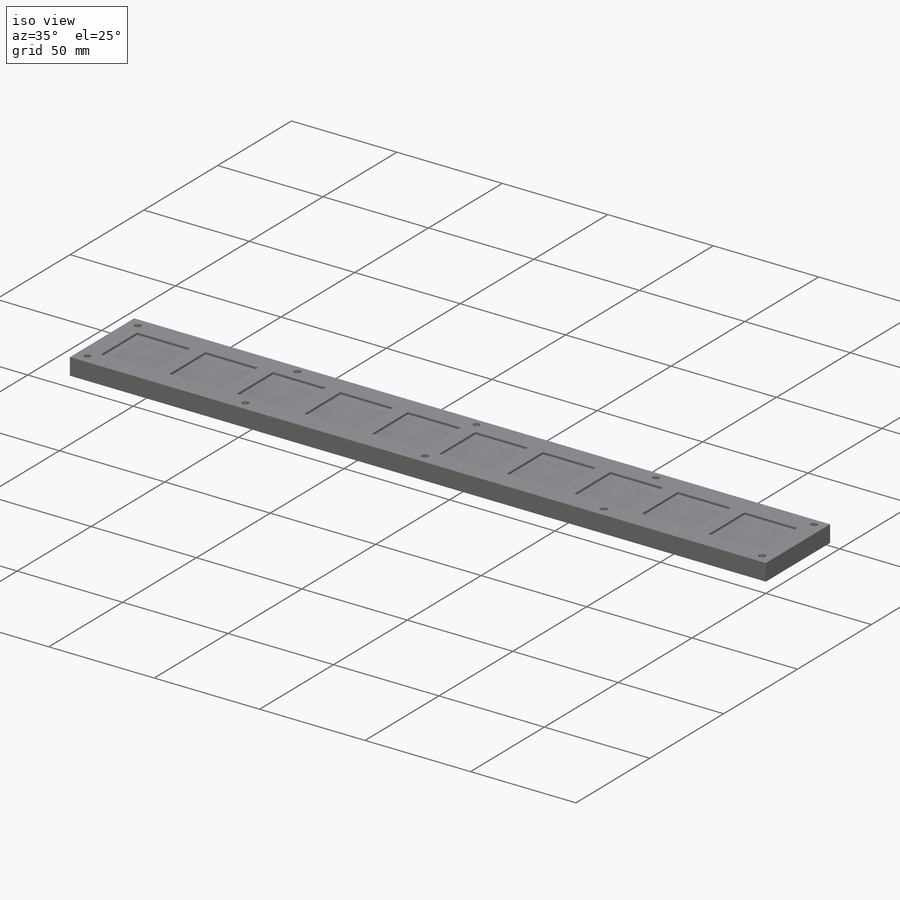
[diagram: iso view]
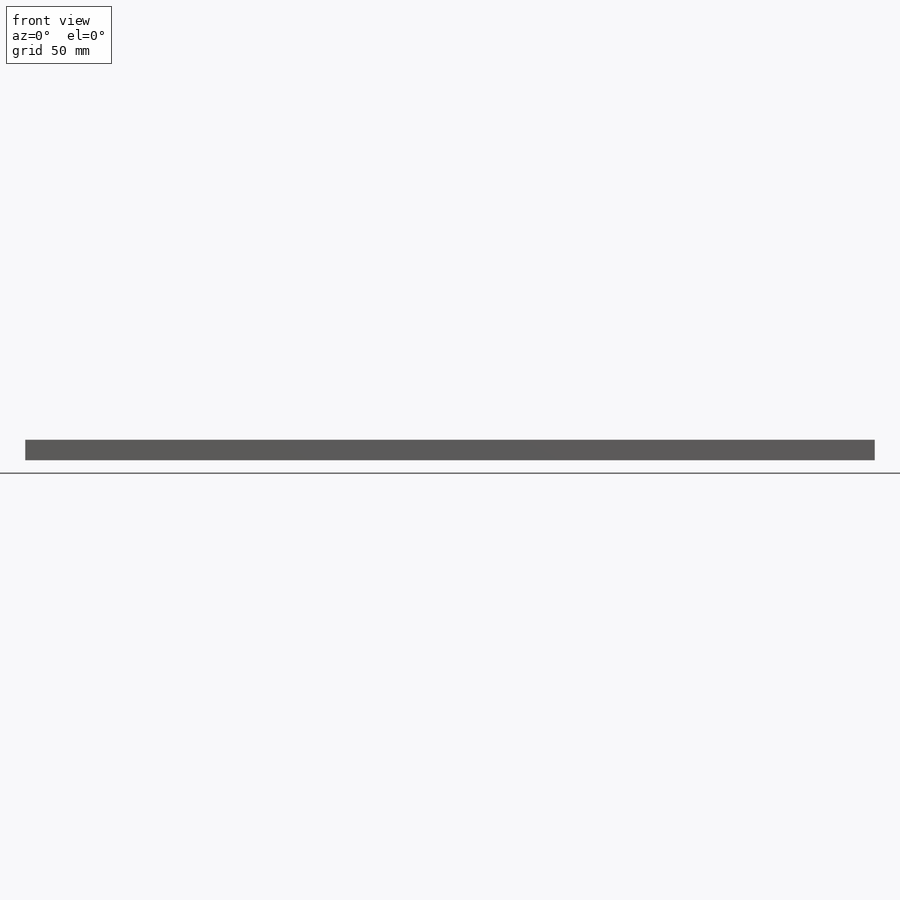
[diagram: front view]
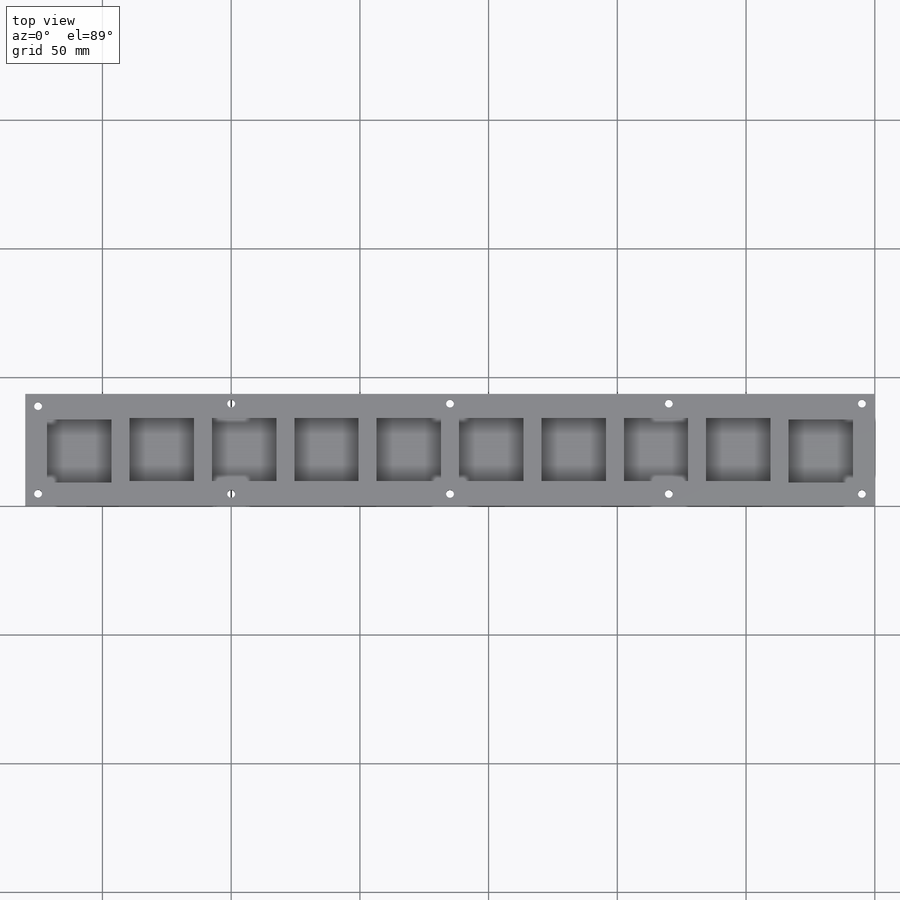
[diagram: top view]
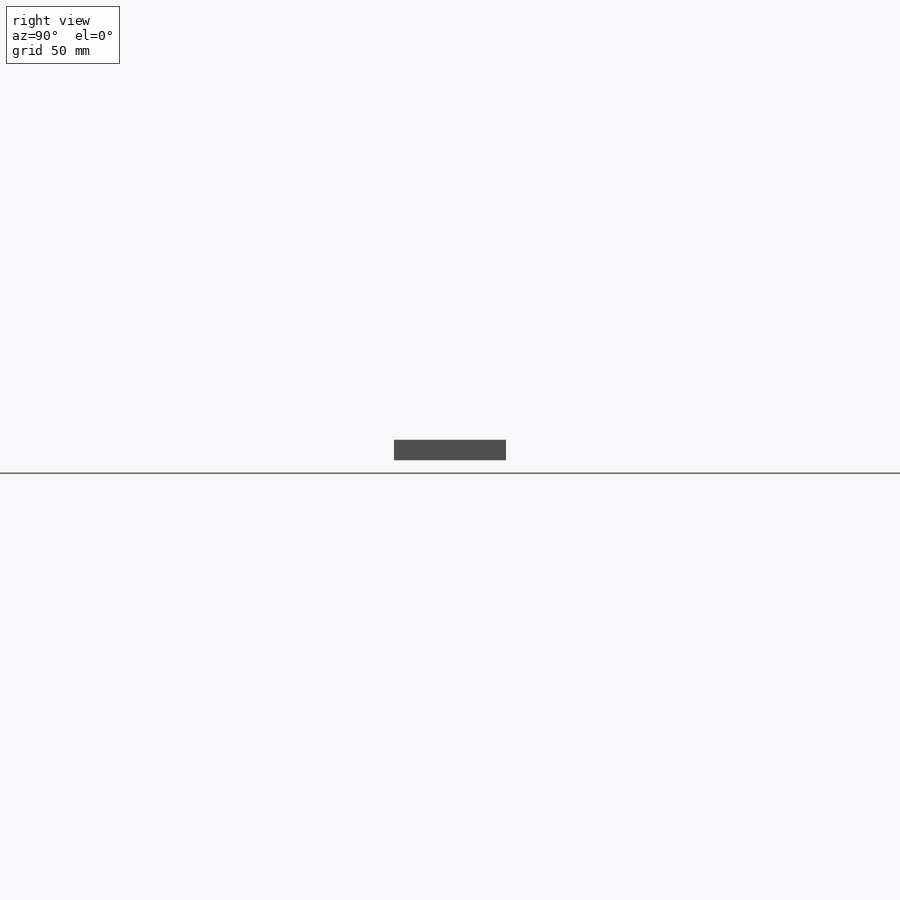
[diagram: right view]
SOLIDWORKS PART (.sldprt)
format: sldprt  version: not decoded by parser v0  size: 342,016 bytes
history: native  units: mm
features: thread x10, sketch x4, material x1, extrude x1, cut_extrude x1, hole x1 (+11 scaffold rows collapsed)
feature tree (29):
  scaffold x11  (default folders/planes/origin — collapsed)
  material  "Material <not specified>"
  sketch  "Sketch1"  dims[D1=330.0mm D2=43.5mm]
  extrude  "Boss-Extrude1"  Depth=8mm
  sketch  "Sketch6"  dims[D1=3.5mm D2=~25.004721mm D3=24.5mm D8=7.0mm D9=7.0mm D10=7.0mm D11=7.0mm D12=9.5mm D13=9.5mm D4=2.0 D5=2.0 D6=2.0 D7=2.0]
  cut_extrude  "Cut-Extrude1"  Depth=1mm
  hole  "Tapped Hole for #4-40 Helicoil2"  [1 undecoded]
  sketch  "Sketch14"  dims[c1.D1=4.75mm c1.D2=4.75mm c1.D3=80.0mm c1.D4=165.0mm c1.D5=250.0mm c1.D6=5.0mm c1.D7=5.0mm c1.D8=80.0mm c1.D9=165.0mm c1.D10=250.0mm c1.D11=250.0mm c1.D12=325.0mm c1.D13=325.0mm c2.D6=34.0mm c2.D3=38.75mm]
  thread  "Hole Thread2"  Diameter=3.56mm  [1 undecoded]
  thread  "Hole Thread3"  Diameter=3.56mm  [1 undecoded]
  thread  "Hole Thread4"  Diameter=3.56mm  [1 undecoded]
  thread  "Hole Thread5"  Diameter=3.56mm  [1 undecoded]
  thread  "Hole Thread6"  Diameter=3.56mm  [1 undecoded]
  thread  "Hole Thread7"  Diameter=3.56mm  [1 undecoded]
  thread  "Hole Thread8"  Diameter=3.56mm  [1 undecoded]
  thread  "Hole Thread9"  Diameter=3.56mm  [1 undecoded]
  thread  "Hole Thread10"  Diameter=3.56mm  [1 undecoded]
  thread  "Hole Thread11"  Diameter=3.56mm  [1 undecoded]
  sketch  "Sketch13"  dims[hole-wizard template sketch: 59 standard entries collapsed; hole parameters kept: c18.Thru Tap Drill Dia.=3.048mm c18.Thru Tap Drill Depth=8.0mm]
decode coverage: 16 of 17 modeling features carry decoded parameters
note: ~ marks probable driven/reference dimensions
note: 11 parameter values undecoded
note: suppression state not decoded; provenance and decode notes live in map.json
